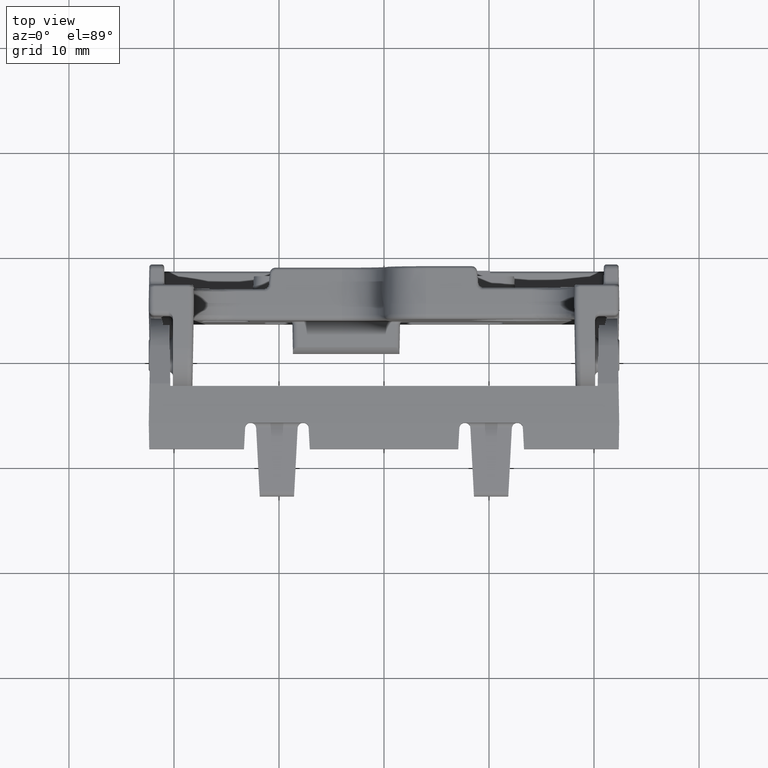
[diagram: clean part render]
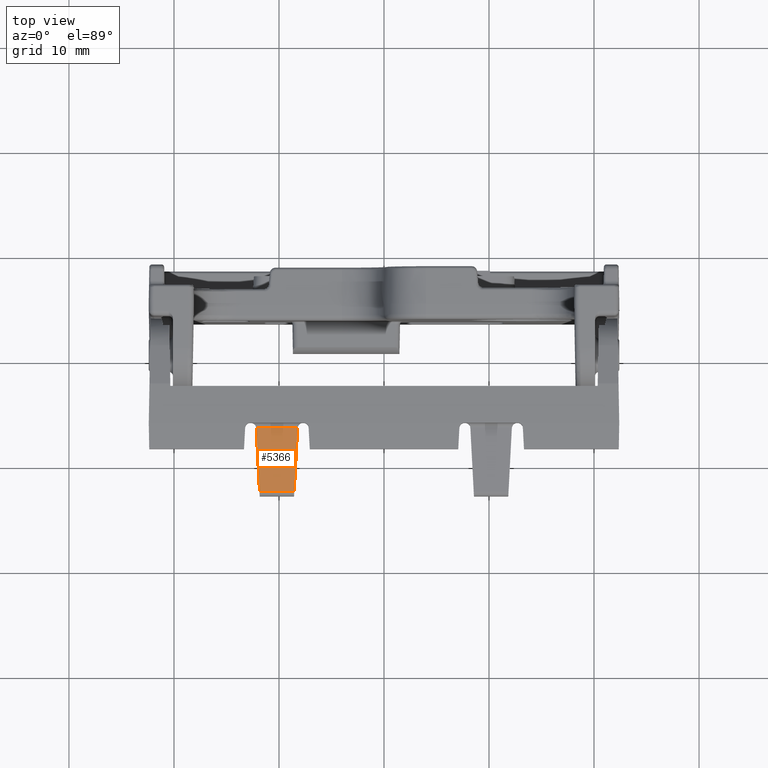
[diagram: same view with one face highlighted and labeled with its STEP entity id]
A machine part, top view. The second image highlights one B-rep face of the part: STEP entity #5366.
In plain terms, the highlighted planar face has unit normal (0, 0.0523, -0.9986).
Its self-contained STEP definition (entity closure, byte-faithful):
#2113=CARTESIAN_POINT('',(-1.217516751598E1,-3.973832021879E0,
1.275167515980E0));
#2123=DIRECTION('',(-1.E0,0.E0,0.E0));
#2124=VECTOR('',#2123,3.950335031960E0);
#2125=CARTESIAN_POINT('',(-8.224832484020E0,-3.973832021879E0,
1.275167515980E0));
#2126=LINE('',#2125,#2124);
#2148=CARTESIAN_POINT('',(-8.224832484020E0,-3.973832021879E0,
1.275167515980E0));
#2170=DIRECTION('',(-1.E0,0.E0,0.E0));
#2171=VECTOR('',#2170,3.315956058077E0);
#2172=CARTESIAN_POINT('',(-8.542021970961E0,-1.002616797812E1,
9.579780290386E-1));
#2173=LINE('',#2172,#2171);
#2194=DIRECTION('',(-5.226442768871E-2,9.972646886342E-1,5.226442768871E-2));
#2195=VECTOR('',#2194,6.068936386920E0);
#2196=CARTESIAN_POINT('',(-1.185797802904E1,-1.002616797812E1,
9.579780290386E-1));
#2197=LINE('',#2196,#2195);
#2198=DIRECTION('',(-5.226442768871E-2,-9.972646886342E-1,-5.226442768871E-2));
#2199=VECTOR('',#2198,6.068936386920E0);
#2200=CARTESIAN_POINT('',(-8.224832484020E0,-3.973832021879E0,
1.275167515980E0));
#2201=LINE('',#2200,#2199);
#2392=VERTEX_POINT('',#2113);
#2398=VERTEX_POINT('',#2148);
#2695=CARTESIAN_POINT('',(-8.542021970961E0,-1.002616797812E1,
9.579780290386E-1));
#2696=CARTESIAN_POINT('',(-1.185797802904E1,-1.002616797812E1,
9.579780290386E-1));
#2697=VERTEX_POINT('',#2695);
#2698=VERTEX_POINT('',#2696);
#5354=CARTESIAN_POINT('',(-7.583607183672E0,-3.5E0,1.3E0));
#5355=DIRECTION('',(0.E0,5.233595624294E-2,-9.986295347546E-1));
#5356=DIRECTION('',(1.E0,0.E0,0.E0));
#5357=AXIS2_PLACEMENT_3D('',#5354,#5355,#5356);
#5358=PLANE('',#5357);
#5359=ORIENTED_EDGE('',*,*,#5344,.T.);
#5361=ORIENTED_EDGE('',*,*,#5360,.T.);
#5362=ORIENTED_EDGE('',*,*,#5299,.F.);
#5363=ORIENTED_EDGE('',*,*,#5324,.T.);
#5364=EDGE_LOOP('',(#5359,#5361,#5362,#5363));
#5365=FACE_OUTER_BOUND('',#5364,.F.);
#5366=ADVANCED_FACE('',(#5365),#5358,.F.);
#5299=EDGE_CURVE('',#2398,#2392,#2126,.T.);
#5324=EDGE_CURVE('',#2398,#2697,#2201,.T.);
#5344=EDGE_CURVE('',#2697,#2698,#2173,.T.);
#5360=EDGE_CURVE('',#2698,#2392,#2197,.T.);